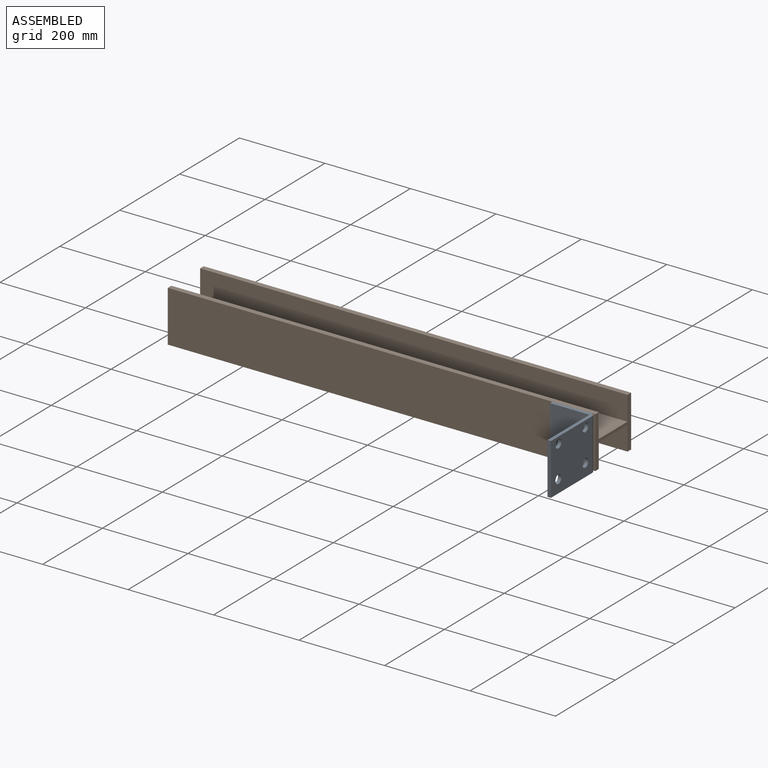
[diagram: assembled view]
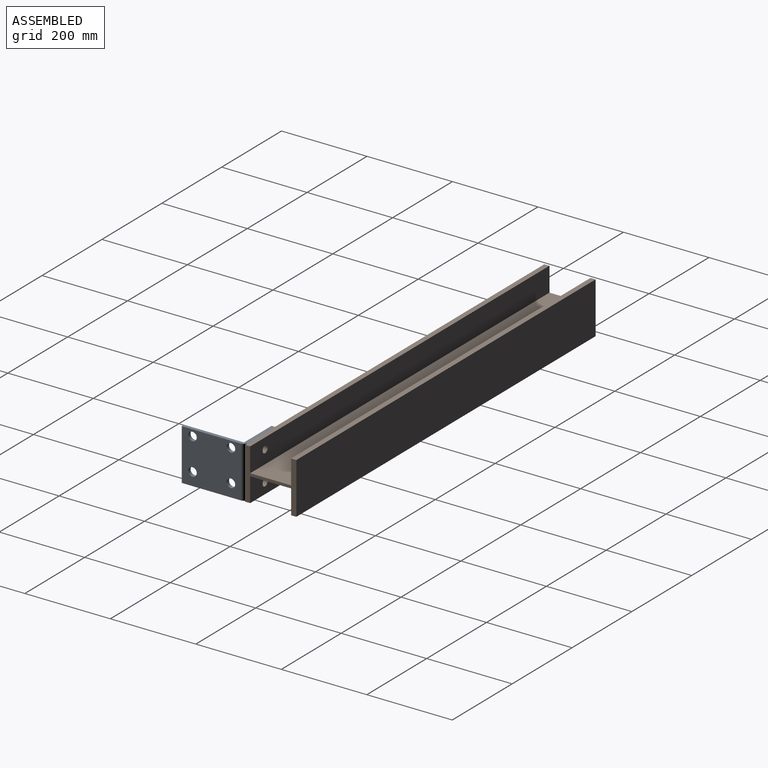
[diagram: assembled view, second angle]
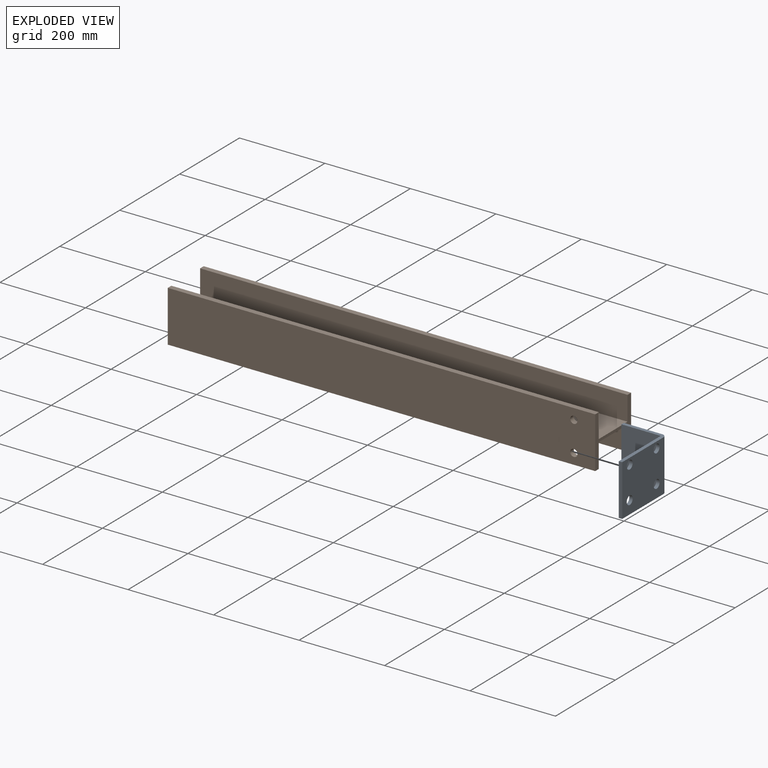
[diagram: exploded view]
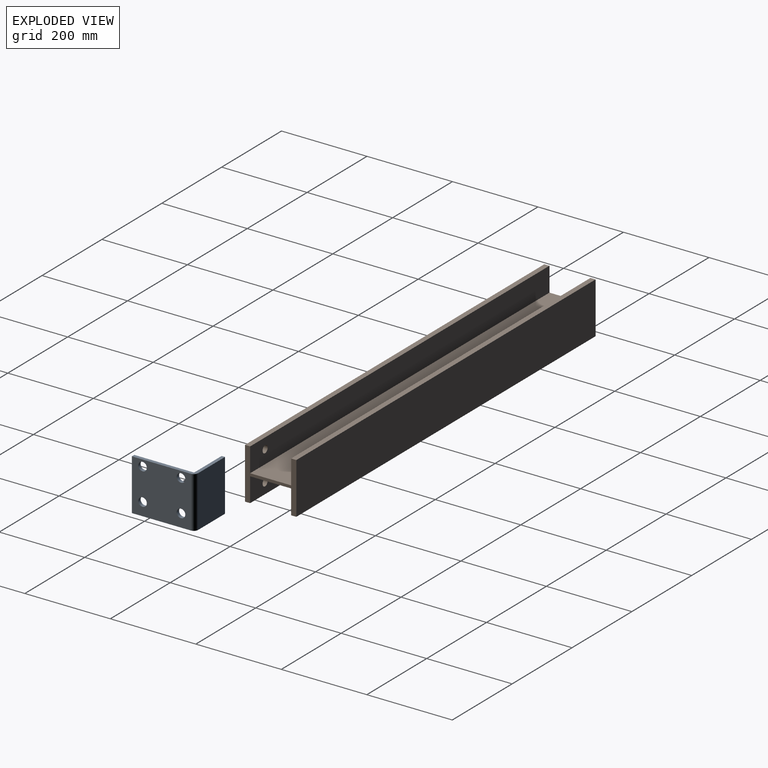
[diagram: exploded view, second angle]
ASSEMBLY  parts=2 mates=3
PART A: 18 faces, bbox 148x120x100 mm
  f0: plane 137.7x8mm, normal (0,-1,0), area 1101.6mm2, adj f1,f7,f8,f14
  f1: plane 120x8mm, normal (-1,0,0), area 960mm2, adj f0,f2,f7,f8
  f2: plane 137.7x8mm, normal (0,1,0), area 1101.6mm2, adj f1,f7,f8,f15
  f3: cylinder r=10mm len=20mm, axis (0,0,1), area 502.7mm2, adj f7,f8
  f4: cylinder r=10mm len=20mm, axis (0,0,1), area 502.7mm2, adj f7,f8
  f5: cylinder r=10mm len=20mm, axis (0,0,1), area 502.7mm2, adj f7,f8
  f6: cylinder r=10mm len=20mm, axis (0,0,1), area 502.7mm2, adj f7,f8
  f7: plane 137.7x120mm, normal (0,0,-1), area 15267.4mm2, adj f0,f1,f2,f3,f4,f5,f6,f16
  f8: plane 137.7x120mm, normal (0,0,1), area 15267.4mm2, adj f0,f1,f2,f3,f4,f5,f6,f17
  f9: plane 120x8mm, normal (0,0,1), area 960mm2, adj f10,f11,f12,f13
  f10: plane 89.7x8mm, normal (0,-1,0), area 717.6mm2, adj f9,f12,f13,f14
  f11: plane 89.7x8mm, normal (0,1,0), area 717.6mm2, adj f9,f12,f13,f15
  f12: plane 120x89.7mm, normal (1,0,0), area 10764mm2, adj f9,f10,f11,f16
  f13: plane 120x89.7mm, normal (-1,0,0), area 10764mm2, adj f9,f10,f11,f17
  f14: plane 10.3x10.3mm, normal (0,-1,0), area 79.2mm2, adj f0,f10,f16,f17
  f15: plane 10.3x10.3mm, normal (0,1,0), area 79.2mm2, adj f2,f11,f16,f17
  f16: cylinder r=10.3mm len=120mm, axis (0,-1,0), area 1941.5mm2, adj f7,f12,f14,f15
  f17: cylinder r=2.3mm len=120mm, axis (0,-1,0), area 433.5mm2, adj f8,f13,f14,f15
PART B: 16 faces, bbox 120x1000x120 mm
  f0: plane 1000x120mm, normal (0,0,1), area 119546mm2, adj f1,f6,f7,f8,f14,f15
  f1: plane 1000x12mm, normal (-1,0,0), area 12000mm2, adj f0,f2,f7,f8
  f2: plane 1000x56.75mm, normal (0,0,-1), area 56523mm2, adj f1,f3,f7,f8,f15
  f3: plane 1000x96mm, normal (-1,0,0), area 96000mm2, adj f2,f7,f8,f11
  f4: plane 1000x96mm, normal (1,0,0), area 96000mm2, adj f5,f7,f8,f12
  f5: plane 1000x56.75mm, normal (0,0,-1), area 56523mm2, adj f4,f6,f7,f8,f14
  f6: plane 1000x12mm, normal (1,0,0), area 12000mm2, adj f0,f5,f7,f8
  f7: plane 120x120mm, normal (0,-1,0), area 3504mm2, adj f0,f1,f2,f3,f4,f5,f6,f9
  f8: plane 120x120mm, normal (0,1,0), area 3504mm2, adj f0,f1,f2,f3,f4,f5,f6,f9
  f9: plane 1000x120mm, normal (0,0,-1), area 120000mm2, adj f7,f8,f10,f13
  f10: plane 1000x12mm, normal (-1,0,0), area 12000mm2, adj f7,f8,f9,f11
  f11: plane 1000x56.75mm, normal (0,0,1), area 56750mm2, adj f3,f7,f8,f10
  f12: plane 1000x56.75mm, normal (0,0,1), area 56750mm2, adj f4,f7,f8,f13
  f13: plane 1000x12mm, normal (1,0,0), area 12000mm2, adj f7,f8,f9,f12
  f14: cylinder r=8.5mm len=17mm, axis (0,0,1), area 640.9mm2, adj f0,f5
  f15: cylinder r=8.5mm len=17mm, axis (0,0,1), area 640.9mm2, adj f0,f2
PLACE A rot(axis=(-0.58,-0.58,0.58),120deg) t=(-755.61,-221.86,-443.05)mm
PLACE B rot(axis=(0.58,-0.58,0.58),120deg) t=(-1755.61,-13.86,-383.05)mm
MATE planar A.f7 <-> B.f7  axis (1,0,0) through (-755.61,-153.11,-383.67)mm
MATE planar A.f2 <-> B.f1  axis (0,0,-1) through (-759.61,-153.01,-443.05)mm
MATE planar A.f12 <-> B.f0  axis (0,1,0) through (-810.76,-73.86,-383.05)mm
